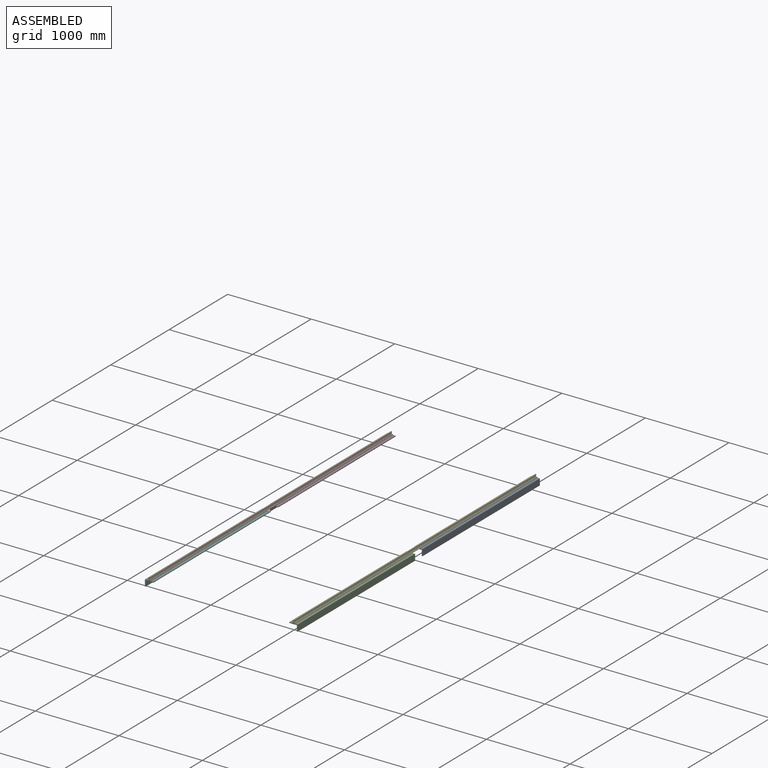
[diagram: assembled view]
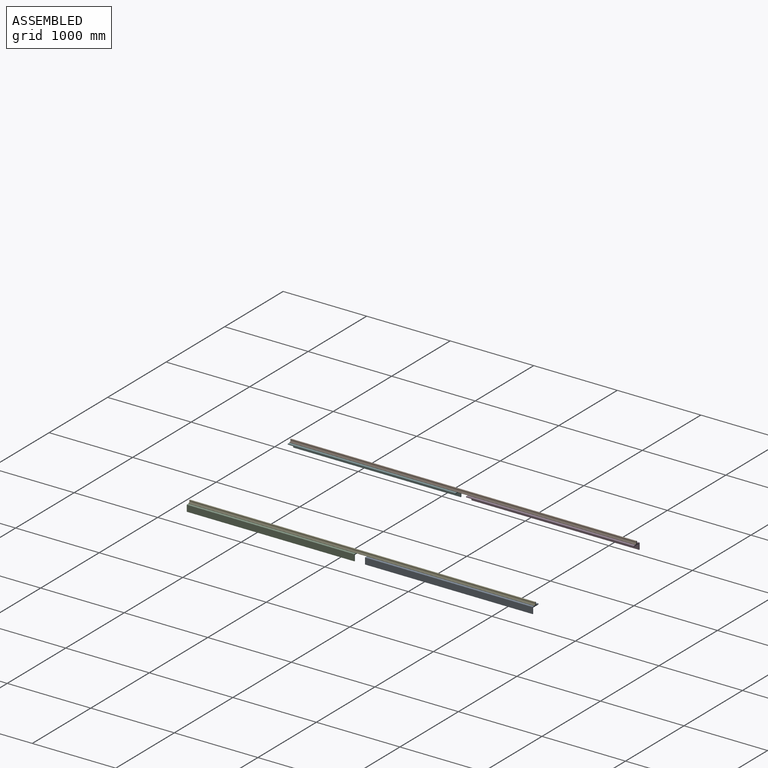
[diagram: assembled view, second angle]
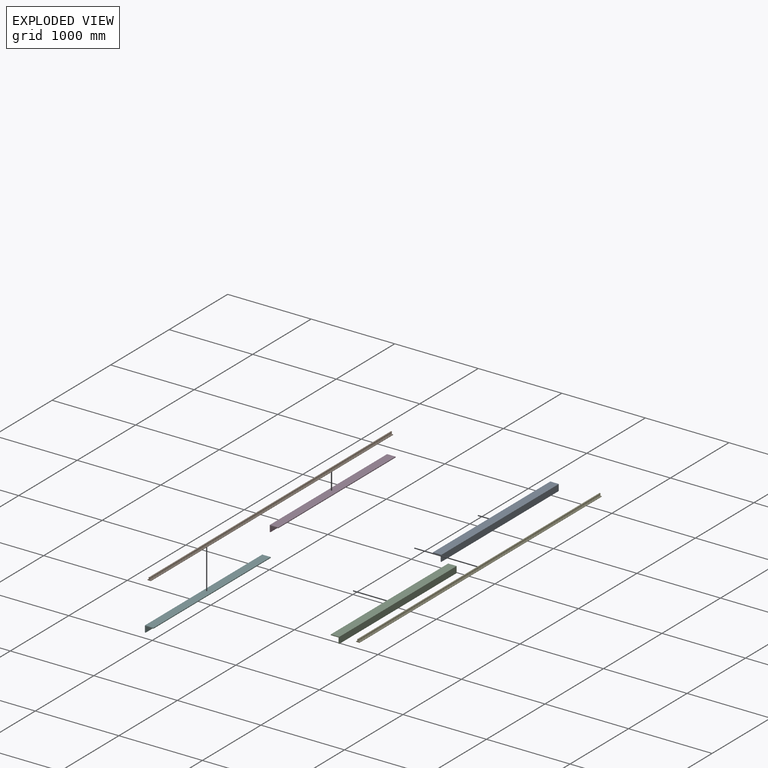
[diagram: exploded view]
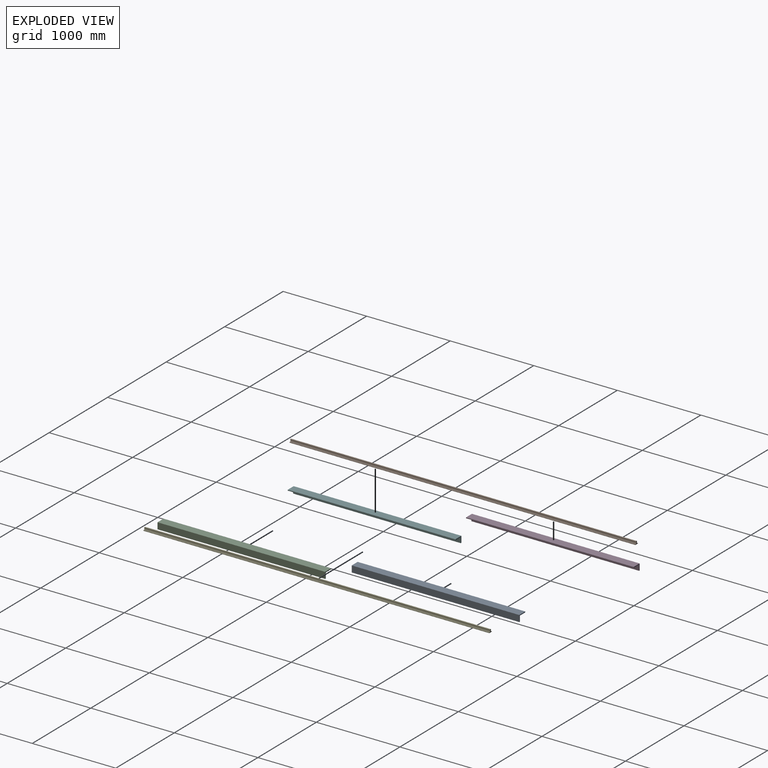
[diagram: exploded view, second angle]
ASSEMBLY  parts=6 mates=4
PART A: 8 faces, bbox 101.6x2006.6x76.2 mm
  f0: plane 2006.6x76.2mm, normal (-1,0,0), area 152902.9mm2, adj f1,f5,f6,f7
  f1: plane 2006.6x9.53mm, normal (0,0,-1), area 19112.9mm2, adj f0,f2,f6,f7
  f2: plane 2006.6x66.68mm, normal (1,0,0), area 133790.1mm2, adj f1,f3,f6,f7
  f3: plane 2006.6x92.08mm, normal (0,0,-1), area 184757.7mm2, adj f2,f4,f6,f7
  f4: plane 2006.6x9.53mm, normal (1,0,0), area 19112.9mm2, adj f3,f5,f6,f7
  f5: plane 2006.6x101.6mm, normal (0,0,1), area 203870.6mm2, adj f0,f4,f6,f7
  f6: plane 101.6x76.2mm, normal (0,-1,0), area 1602.8mm2, adj f0,f1,f2,f3,f4,f5
  f7: plane 101.6x76.2mm, normal (0,1,0), area 1602.8mm2, adj f0,f1,f2,f3,f4,f5
PART B: 10 faces, bbox 41.3x4140.2x36 mm
  f0: plane 4140.2x11.89mm, normal (0,0,1), area 49215.4mm2, adj f1,f7,f8,f9
  f1: plane 4140.2x6.35mm, normal (-1,0,0), area 26290.3mm2, adj f0,f2,f8,f9
  f2: plane 4140.2x41.28mm, normal (0,0,-1), area 170886.8mm2, adj f1,f3,f8,f9
  f3: plane 4140.2x6.35mm, normal (1,0,0), area 26290.3mm2, adj f2,f4,f8,f9
  f4: plane 4140.2x11.89mm, normal (0,0,1), area 49215.4mm2, adj f3,f5,f8,f9
  f5: plane 4140.2x15.68mm, normal (0.95,0,0.32), area 68463mm2, adj f4,f6,f8,f9
  f6: cylinder r=7.43mm len=4140.2mm, axis (0,1,0), area 162872.4mm2, adj f5,f7,f8,f9
  f7: plane 4140.2x15.68mm, normal (-0.95,0,0.32), area 68429.7mm2, adj f0,f6,f8,f9
  f8: plane 41.28x36mm, normal (0,-1,0), area 623.8mm2, adj f0,f1,f2,f3,f4,f5,f6,f7
  f9: plane 41.28x36mm, normal (0,1,0), area 623.8mm2, adj f0,f1,f2,f3,f4,f5,f6,f7
PART C: same geometry as A
PART D: same geometry as A
PART E: same geometry as B
PART F: same geometry as A
PLACE A rot(axis=(0,0,1),180deg) t=(760.5,43.68,7.52)mm
PLACE B rot(axis=(0,0,1),180deg) t=(-974.41,-2089.92,55.06)mm
PLACE C rot(axis=(0,0,1),180deg) t=(760.5,-2089.92,7.52)mm
PLACE D t=(-982.9,2050.28,7.52)mm
PLACE E t=(752.02,2050.28,55.06)mm
PLACE F t=(-982.9,-83.32,7.52)mm
MATE fastened A.f5 <-> E.f2  axis (0,0,1) through (752.4,2050.28,50.8)mm
MATE fastened C.f5 <-> E.f2  axis (0,0,1) through (752.4,-2089.92,50.8)mm
MATE fastened F.f5 <-> B.f2  axis (0,0,1) through (-974.8,-2089.92,50.8)mm
MATE fastened D.f5 <-> B.f2  axis (0,0,1) through (-974.8,2050.28,50.8)mm
